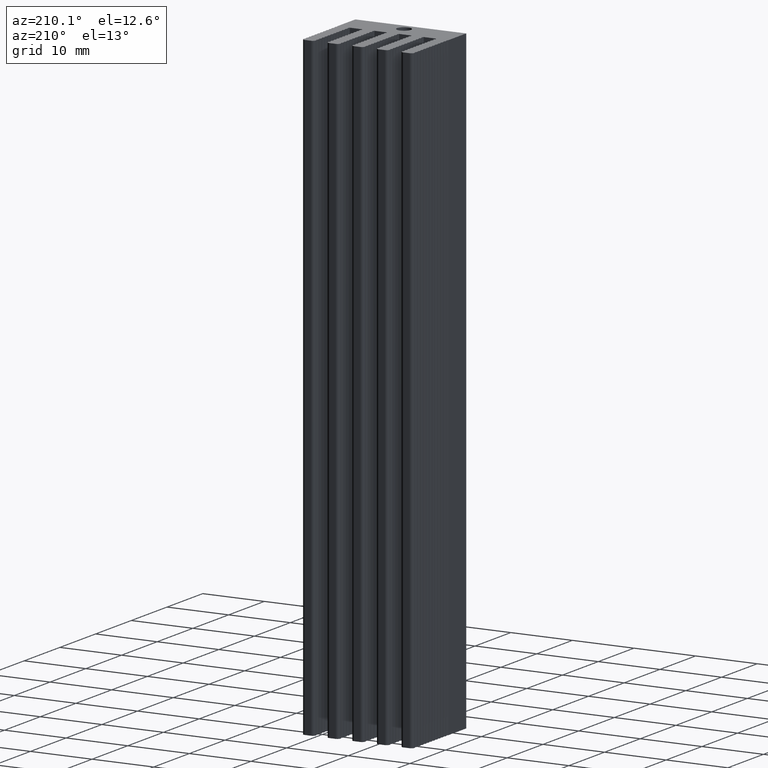
[diagram: clean part render]
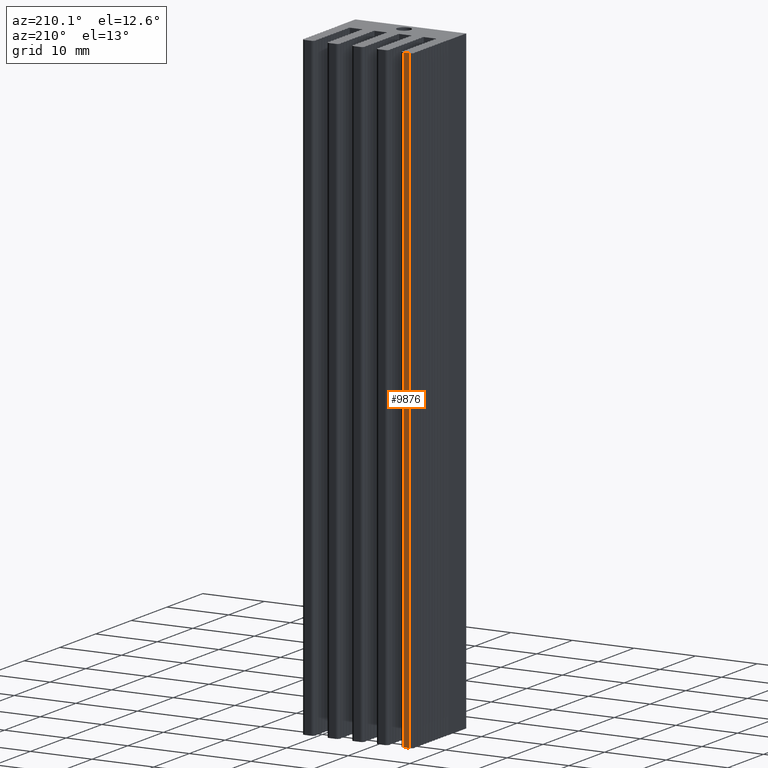
[diagram: same view with one face highlighted and labeled with its STEP entity id]
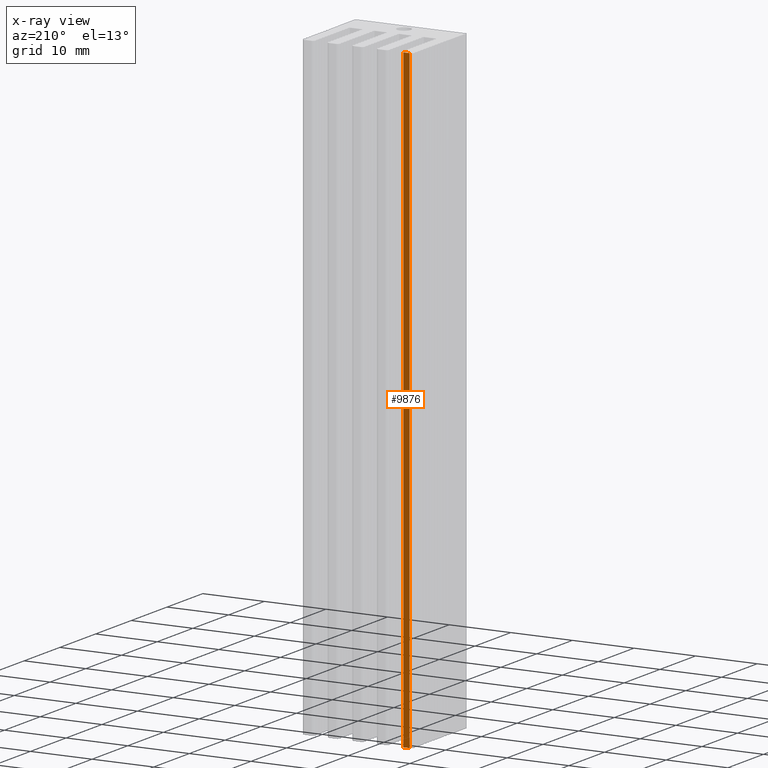
[diagram: x-ray of the same camera — body ghosted, the highlighted face saturated]
A machine part, auxiliary view. The second image highlights one B-rep face of the part: STEP entity #9876.
The next image is the same camera in x-ray: the body ghosted, the highlighted face saturated — about 0% of this face is hidden behind the body in this view.
In plain terms, the highlighted planar face has unit normal (0, -1, 0).
Its self-contained STEP definition (entity closure, byte-faithful):
#766 = EDGE_CURVE ( 'NONE', #8229, #8437, #4019, .T. ) ;
#1993 = EDGE_CURVE ( 'NONE', #15711, #8437, #14026, .T. ) ;
#2388 = ORIENTED_EDGE ( 'NONE', *, *, #766, .F. ) ;
#2720 = ORIENTED_EDGE ( 'NONE', *, *, #13363, .T. ) ;
#3236 = CARTESIAN_POINT ( 'NONE',  ( -8.500000000000119016, 7.500000000000007105, 50.00000000000000000 ) ) ;
#4019 = LINE ( 'NONE', #15161, #8129 ) ;
#4160 = VECTOR ( 'NONE', #18313, 1000.000000000000000 ) ;
#4230 = ORIENTED_EDGE ( 'NONE', *, *, #17721, .F. ) ;
#5604 = CARTESIAN_POINT ( 'NONE',  ( -7.500000000000117240, 7.500000000000007105, 50.00000000000000000 ) ) ;
#6712 = DIRECTION ( 'NONE',  ( -0.0000000000000000000, -0.0000000000000000000, -1.000000000000000000 ) ) ;
#7312 = DIRECTION ( 'NONE',  ( 0.0000000000000000000, -1.000000000000000000, 0.0000000000000000000 ) ) ;
#8129 = VECTOR ( 'NONE', #8275, 1000.000000000000000 ) ;
#8229 = VERTEX_POINT ( 'NONE', #3236 ) ;
#8275 = DIRECTION ( 'NONE',  ( -0.0000000000000000000, -0.0000000000000000000, -1.000000000000000000 ) ) ;
#8278 = EDGE_LOOP ( 'NONE', ( #11739, #2388, #4230, #2720 ) ) ;
#8437 = VERTEX_POINT ( 'NONE', #17561 ) ;
#8746 = LINE ( 'NONE', #17285, #16408 ) ;
#9680 = CARTESIAN_POINT ( 'NONE',  ( 0.0000000000000000000, 7.500000000000007105, -50.00000000000000000 ) ) ;
#9876 = ADVANCED_FACE ( 'NONE', ( #14151 ), #14853, .F. ) ;
#9932 = VECTOR ( 'NONE', #12112, 1000.000000000000000 ) ;
#11739 = ORIENTED_EDGE ( 'NONE', *, *, #1993, .T. ) ;
#12112 = DIRECTION ( 'NONE',  ( -1.000000000000000000, 0.0000000000000000000, 0.0000000000000000000 ) ) ;
#12291 = LINE ( 'NONE', #16782, #4160 ) ;
#13363 = EDGE_CURVE ( 'NONE', #18735, #15711, #8746, .T. ) ;
#13706 = CARTESIAN_POINT ( 'NONE',  ( -7.500000000000117240, 7.500000000000007105, -50.00000000000000000 ) ) ;
#14026 = LINE ( 'NONE', #9680, #9932 ) ;
#14151 = FACE_OUTER_BOUND ( 'NONE', #8278, .T. ) ;
#14853 = PLANE ( 'NONE',  #16479 ) ;
#15161 = CARTESIAN_POINT ( 'NONE',  ( -8.500000000000119016, 7.500000000000007105, 50.00000000000000000 ) ) ;
#15711 = VERTEX_POINT ( 'NONE', #13706 ) ;
#16408 = VECTOR ( 'NONE', #6712, 1000.000000000000000 ) ;
#16477 = CARTESIAN_POINT ( 'NONE',  ( 0.0000000000000000000, 7.500000000000007105, 50.00000000000000000 ) ) ;
#16479 = AXIS2_PLACEMENT_3D ( 'NONE', #16477, #7312, #18031 ) ;
#16782 = CARTESIAN_POINT ( 'NONE',  ( 0.0000000000000000000, 7.500000000000007105, 50.00000000000000000 ) ) ;
#17285 = CARTESIAN_POINT ( 'NONE',  ( -7.500000000000117240, 7.500000000000007105, 50.00000000000000000 ) ) ;
#17561 = CARTESIAN_POINT ( 'NONE',  ( -8.500000000000119016, 7.500000000000007105, -50.00000000000000000 ) ) ;
#17721 = EDGE_CURVE ( 'NONE', #18735, #8229, #12291, .T. ) ;
#18031 = DIRECTION ( 'NONE',  ( 0.0000000000000000000, -0.0000000000000000000, -1.000000000000000000 ) ) ;
#18313 = DIRECTION ( 'NONE',  ( -1.000000000000000000, 0.0000000000000000000, 0.0000000000000000000 ) ) ;
#18735 = VERTEX_POINT ( 'NONE', #5604 ) ;